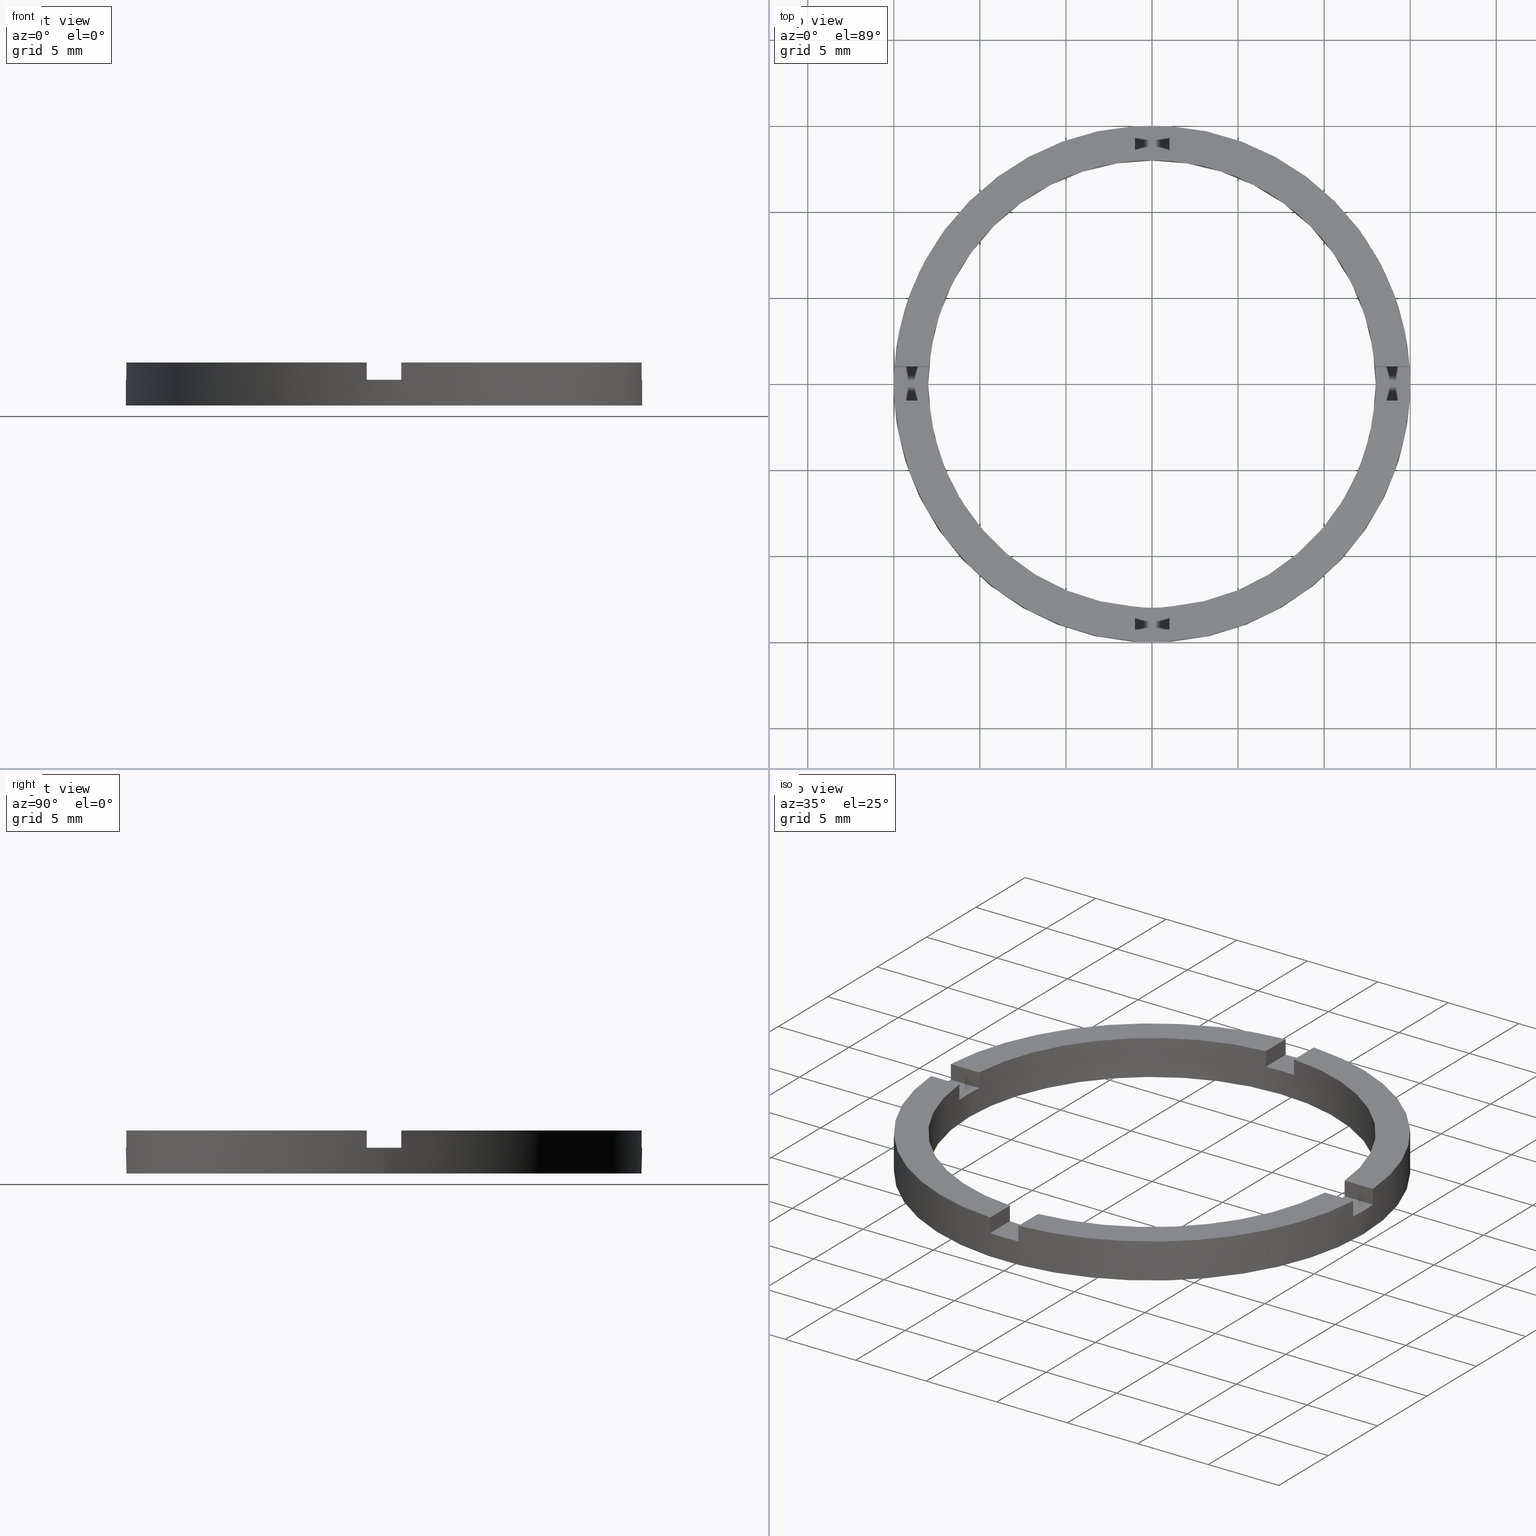
[diagram: canonical four-view strip — front | top / right | iso, engineering-drawing reading convention]
A machine part, canonical four-view strip (front | top / right | iso — engineering-drawing reading convention). The complete STEP part file that produces these views, byte-faithful:
ISO-10303-21;
HEADER;
FILE_DESCRIPTION (( 'STEP AP203' ),
    '1' );
FILE_NAME ('514066.step',
    '2024-12-26T02:34:19',
    ( 'MSI' ),
    ( '' ),
    'SwSTEP 2.0',
    'SolidWorks 2020',
    '' );
FILE_SCHEMA (( 'CONFIG_CONTROL_DESIGN' ));
ENDSEC;

DATA;
#1 = CARTESIAN_POINT ( 'NONE',  ( -12.96148139681571898, -1.000000000000022649, 2.500000000000000000 ) ) ;
#2 = EDGE_CURVE ( 'NONE', #150, #445, #635, .T. ) ;
#3 = EDGE_CURVE ( 'NONE', #166, #416, #114, .T. ) ;
#4 = ORIENTED_EDGE ( 'NONE', *, *, #644, .T. ) ;
#5 = DIRECTION ( 'NONE',  ( 1.000000000000000000, 0.000000000000000000, 0.000000000000000000 ) ) ;
#6 = CARTESIAN_POINT ( 'NONE',  ( 14.96662954709577775, 0.9999999999998406830, 1.500000000000000000 ) ) ;
#7 = VERTEX_POINT ( 'NONE', #190 ) ;
#8 = VERTEX_POINT ( 'NONE', #508 ) ;
#9 = EDGE_CURVE ( 'NONE', #672, #167, #630, .T. ) ;
#10 = DIRECTION ( 'NONE',  ( 1.000000000000000000, 4.336808689942017736E-17, 0.000000000000000000 ) ) ;
#11 = PERSON ( 'δָ��', 'δָ��', 'δָ��', ('δָ��'), ('δָ��'), ('δָ��') ) ;
#12 = DIRECTION ( 'NONE',  ( 0.000000000000000000, 0.000000000000000000, 1.000000000000000000 ) ) ;
#13 = ORIENTED_EDGE ( 'NONE', *, *, #596, .F. ) ;
#14 = DIRECTION ( 'NONE',  ( 1.000000000000000000, 0.000000000000000000, 0.000000000000000000 ) ) ;
#15 = DIRECTION ( 'NONE',  ( 0.000000000000000000, 0.000000000000000000, 1.000000000000000000 ) ) ;
#16 = PLANE ( 'NONE',  #615 ) ;
#17 = DIRECTION ( 'NONE',  ( 0.000000000000000000, 0.000000000000000000, 1.000000000000000000 ) ) ;
#18 = EDGE_CURVE ( 'NONE', #211, #483, #636, .T. ) ;
#19 = PLANE ( 'NONE',  #208 ) ;
#20 = LINE ( 'NONE', #109, #542 ) ;
#21 = CARTESIAN_POINT ( 'NONE',  ( -5.000000000000184741, -1.000000000000021316, 1.500000000000000000 ) ) ;
#22 = VECTOR ( 'NONE', #735, 1000.000000000000000 ) ;
#23 = VECTOR ( 'NONE', #399, 1000.000000000000000 ) ;
#24 = VECTOR ( 'NONE', #173, 1000.000000000000000 ) ;
#25 = AXIS2_PLACEMENT_3D ( 'NONE', #576, #782, #288 ) ;
#26 = CIRCLE ( 'NONE', #33, 13.00000000000000178 ) ;
#27 = DIRECTION ( 'NONE',  ( -1.000000000000000000, 0.000000000000000000, 0.000000000000000000 ) ) ;
#28 = CIRCLE ( 'NONE', #498, 13.00000000000000178 ) ;
#29 = LINE ( 'NONE', #577, #46 ) ;
#30 = FACE_OUTER_BOUND ( 'NONE', #715, .T. ) ;
#31 = EDGE_CURVE ( 'NONE', #673, #7, #614, .T. ) ;
#32 = DIRECTION ( 'NONE',  ( -1.000000000000000000, -4.336808689942017736E-17, -0.000000000000000000 ) ) ;
#33 = AXIS2_PLACEMENT_3D ( 'NONE', #424, #251, #552 ) ;
#34 = CARTESIAN_POINT ( 'NONE',  ( 0.000000000000000000, 0.000000000000000000, 1.500000000000000000 ) ) ;
#35 = VECTOR ( 'NONE', #650, 1000.000000000000000 ) ;
#36 = VECTOR ( 'NONE', #104, 1000.000000000000000 ) ;
#37 = AXIS2_PLACEMENT_3D ( 'NONE', #727, #15, #180 ) ;
#38 = VECTOR ( 'NONE', #10, 1000.000000000000000 ) ;
#39 = CARTESIAN_POINT ( 'NONE',  ( 0.9999999999998366862, -12.96148139681573497, 2.500000000000000000 ) ) ;
#40 = LINE ( 'NONE', #728, #24 ) ;
#41 = VECTOR ( 'NONE', #140, 1000.000000000000000 ) ;
#42 = APPLICATION_CONTEXT ( 'configuration controlled 3d designs of mechanical parts and assemblies' ) ;
#43 = CARTESIAN_POINT ( 'NONE',  ( 0.000000000000000000, 0.000000000000000000, 2.500000000000000000 ) ) ;
#44 = VECTOR ( 'NONE', #591, 1000.000000000000000 ) ;
#45 = FACE_OUTER_BOUND ( 'NONE', #465, .T. ) ;
#46 = VECTOR ( 'NONE', #71, 1000.000000000000000 ) ;
#47 = VECTOR ( 'NONE', #639, 1000.000000000000000 ) ;
#48 = FACE_OUTER_BOUND ( 'NONE', #448, .T. ) ;
#49 = CIRCLE ( 'NONE', #449, 13.00000000000000178 ) ;
#50 = FACE_OUTER_BOUND ( 'NONE', #423, .T. ) ;
#51 = VECTOR ( 'NONE', #499, 1000.000000000000000 ) ;
#52 = CARTESIAN_POINT ( 'NONE',  ( 0.9999999999999751310, 14.96662954709576709, 1.500000000000000000 ) ) ;
#53 = FACE_OUTER_BOUND ( 'NONE', #677, .T. ) ;
#54 = DIRECTION ( 'NONE',  ( 1.000000000000000000, -0.000000000000000000, 0.000000000000000000 ) ) ;
#55 = CARTESIAN_POINT ( 'NONE',  ( -5.000000000000184741, -1.000000000000021316, 1.500000000000000000 ) ) ;
#56 = DIRECTION ( 'NONE',  ( 0.000000000000000000, 0.000000000000000000, 1.000000000000000000 ) ) ;
#57 = DIRECTION ( 'NONE',  ( 0.000000000000000000, 0.000000000000000000, 1.000000000000000000 ) ) ;
#58 = PLANE ( 'NONE',  #562 ) ;
#59 = AXIS2_PLACEMENT_3D ( 'NONE', #522, #537, #592 ) ;
#60 = APPROVAL_ROLE ( '' ) ;
#61 = DIRECTION ( 'NONE',  ( -0.000000000000000000, -0.000000000000000000, -1.000000000000000000 ) ) ;
#62 = DIRECTION ( 'NONE',  ( 1.000000000000000000, 1.734723475976807094E-16, 0.000000000000000000 ) ) ;
#63 = APPROVAL_STATUS ( 'not_yet_approved' ) ;
#64 = CARTESIAN_POINT ( 'NONE',  ( 13.00000000000000178, 1.592040838891559293E-15, 0.000000000000000000 ) ) ;
#65 = CC_DESIGN_PERSON_AND_ORGANIZATION_ASSIGNMENT ( #400, #397, ( #392 ) ) ;
#66 = DIRECTION ( 'NONE',  ( -0.000000000000000000, -0.000000000000000000, -1.000000000000000000 ) ) ;
#67 = EDGE_CURVE ( 'NONE', #141, #718, #364, .T. ) ;
#68 = CARTESIAN_POINT ( 'NONE',  ( -1.000000000000163203, -12.96148139681570832, 2.500000000000000000 ) ) ;
#69 = CARTESIAN_POINT ( 'NONE',  ( 0.9999999999998356870, -5.000000000000179412, 1.500000000000000000 ) ) ;
#70 = CARTESIAN_POINT ( 'NONE',  ( 0.000000000000000000, 0.000000000000000000, 1.500000000000000000 ) ) ;
#71 = DIRECTION ( 'NONE',  ( -0.000000000000000000, -0.000000000000000000, -1.000000000000000000 ) ) ;
#72 = DIRECTION ( 'NONE',  ( 1.000000000000000000, 0.000000000000000000, -0.000000000000000000 ) ) ;
#73 = EDGE_CURVE ( 'NONE', #141, #470, #337, .T. ) ;
#74 = DIRECTION ( 'NONE',  ( 1.000000000000000000, 0.000000000000000000, 0.000000000000000000 ) ) ;
#75 = CARTESIAN_POINT ( 'NONE',  ( 12.96148139681570832, -1.000000000000159428, 2.500000000000000000 ) ) ;
#76 = DIRECTION ( 'NONE',  ( 0.000000000000000000, 0.000000000000000000, 1.000000000000000000 ) ) ;
#77 = EDGE_CURVE ( 'NONE', #141, #672, #107, .T. ) ;
#78 = APPROVAL ( #63, 'δָ��' ) ;
#79 = ADVANCED_FACE ( 'NONE', ( #98 ), #207, .F. ) ;
#80 = CYLINDRICAL_SURFACE ( 'NONE', #386, 13.00000000000000178 ) ;
#81 = CC_DESIGN_SECURITY_CLASSIFICATION ( #125, ( #392 ) ) ;
#82 = VECTOR ( 'NONE', #216, 1000.000000000000000 ) ;
#83 = LINE ( 'NONE', #258, #87 ) ;
#84 = PRODUCT_DEFINITION ( 'δ֪', '', #392, #329 ) ;
#85 = CIRCLE ( 'NONE', #119, 15.00000000000000000 ) ;
#86 = CIRCLE ( 'NONE', #781, 13.00000000000000178 ) ;
#87 = VECTOR ( 'NONE', #315, 1000.000000000000000 ) ;
#88 = ADVANCED_FACE ( 'NONE', ( #609 ), #606, .T. ) ;
#89 = VECTOR ( 'NONE', #734, 1000.000000000000000 ) ;
#90 = PLANE ( 'NONE',  #59 ) ;
#91 = CIRCLE ( 'NONE', #647, 15.00000000000000000 ) ;
#92 = CARTESIAN_POINT ( 'NONE',  ( -1.000000000000164313, -5.000000000000179412, 2.500000000000000000 ) ) ;
#93 = CARTESIAN_POINT ( 'NONE',  ( 0.9999999999998369082, -14.96662954709577775, 2.500000000000000000 ) ) ;
#94 = VECTOR ( 'NONE', #439, 1000.000000000000000 ) ;
#95 = CARTESIAN_POINT ( 'NONE',  ( -12.96148139681571898, -1.000000000000022649, 1.500000000000000000 ) ) ;
#96 = CIRCLE ( 'NONE', #100, 13.00000000000000178 ) ;
#97 = CARTESIAN_POINT ( 'NONE',  ( 0.000000000000000000, 0.000000000000000000, 2.500000000000000000 ) ) ;
#98 = FACE_OUTER_BOUND ( 'NONE', #680, .T. ) ;
#99 = CARTESIAN_POINT ( 'NONE',  ( 12.96148139681573497, 0.9999999999998406830, 2.500000000000000000 ) ) ;
#100 = AXIS2_PLACEMENT_3D ( 'NONE', #572, #771, #627 ) ;
#101 = VECTOR ( 'NONE', #237, 1000.000000000000000 ) ;
#102 = FACE_OUTER_BOUND ( 'NONE', #426, .T. ) ;
#103 = CIRCLE ( 'NONE', #489, 15.00000000000000000 ) ;
#104 = DIRECTION ( 'NONE',  ( 1.000000000000000000, 4.336808689942017736E-17, 0.000000000000000000 ) ) ;
#105 = CIRCLE ( 'NONE', #230, 13.00000000000000178 ) ;
#106 = VECTOR ( 'NONE', #32, 1000.000000000000000 ) ;
#107 = LINE ( 'NONE', #358, #106 ) ;
#108 = ORIENTED_EDGE ( 'NONE', *, *, #2, .F. ) ;
#109 = CARTESIAN_POINT ( 'NONE',  ( -13.00000000000000178, 0.000000000000000000, 2.500000000000000000 ) ) ;
#110 = ORIENTED_EDGE ( 'NONE', *, *, #512, .F. ) ;
#111 = DIRECTION ( 'NONE',  ( 0.000000000000000000, 0.000000000000000000, 1.000000000000000000 ) ) ;
#112 = AXIS2_PLACEMENT_3D ( 'NONE', #120, #314, #511 ) ;
#113 = ORIENTED_EDGE ( 'NONE', *, *, #711, .F. ) ;
#114 = LINE ( 'NONE', #21, #375 ) ;
#115 = ORIENTED_EDGE ( 'NONE', *, *, #550, .F. ) ;
#116 = PERSON_AND_ORGANIZATION_ROLE ( 'design_owner' ) ;
#117 = CC_DESIGN_PERSON_AND_ORGANIZATION_ASSIGNMENT ( #408, #291, ( #84 ) ) ;
#118 = DIRECTION ( 'NONE',  ( -0.000000000000000000, -1.000000000000000000, -0.000000000000000000 ) ) ;
#119 = AXIS2_PLACEMENT_3D ( 'NONE', #70, #284, #319 ) ;
#120 = CARTESIAN_POINT ( 'NONE',  ( 0.000000000000000000, 0.000000000000000000, 2.500000000000000000 ) ) ;
#121 = EDGE_CURVE ( 'NONE', #485, #416, #96, .T. ) ;
#122 = AXIS2_PLACEMENT_3D ( 'NONE', #300, #634, #14 ) ;
#123 = AXIS2_PLACEMENT_3D ( 'NONE', #43, #136, #463 ) ;
#124 = CALENDAR_DATE ( 2024, 26, 12 ) ;
#125 = SECURITY_CLASSIFICATION ( '', '', #344 ) ;
#126 = LOCAL_TIME ( 10, 34, 19.00000000000000000, #131 ) ;
#127 = CALENDAR_DATE ( 2024, 26, 12 ) ;
#128 = DIRECTION ( 'NONE',  ( -0.000000000000000000, -0.000000000000000000, -1.000000000000000000 ) ) ;
#129 = APPROVAL_DATE_TIME ( #664, #455 ) ;
#130 = PERSON_AND_ORGANIZATION ( #11, #689 ) ;
#131 = COORDINATED_UNIVERSAL_TIME_OFFSET ( 8, 0, .AHEAD. ) ;
#132 = AXIS2_PLACEMENT_3D ( 'NONE', #259, #613, #595 ) ;
#133 = APPROVAL_DATE_TIME ( #652, #305 ) ;
#134 = PERSON_AND_ORGANIZATION ( #11, #689 ) ;
#135 = EDGE_CURVE ( 'NONE', #443, #425, #356, .T. ) ;
#136 = DIRECTION ( 'NONE',  ( -0.000000000000000000, -0.000000000000000000, -1.000000000000000000 ) ) ;
#137 = CALENDAR_DATE ( 2024, 26, 12 ) ;
#138 = COORDINATED_UNIVERSAL_TIME_OFFSET ( 8, 0, .AHEAD. ) ;
#139 = ORIENTED_EDGE ( 'NONE', *, *, #651, .F. ) ;
#140 = DIRECTION ( 'NONE',  ( 0.000000000000000000, 1.000000000000000000, 0.000000000000000000 ) ) ;
#141 = VERTEX_POINT ( 'NONE', #265 ) ;
#142 = CARTESIAN_POINT ( 'NONE',  ( 0.9999999999999751310, 4.999999999999999112, 1.500000000000000000 ) ) ;
#143 = ORIENTED_EDGE ( 'NONE', *, *, #560, .T. ) ;
#144 = DATE_AND_TIME ( #127, #658 ) ;
#145 = VERTEX_POINT ( 'NONE', #699 ) ;
#146 = ORIENTED_EDGE ( 'NONE', *, *, #438, .T. ) ;
#147 = APPROVAL_PERSON_ORGANIZATION ( #134, #455, #60 ) ;
#148 = EDGE_LOOP ( 'NONE', ( #468, #146, #742, #453, #682, #201, #733, #729, #467, #738, #181, #456 ) ) ;
#149 = CARTESIAN_POINT ( 'NONE',  ( -5.000000000000184741, 0.9999999999999787947, 2.500000000000000000 ) ) ;
#150 = VERTEX_POINT ( 'NONE', #620 ) ;
#151 = ORIENTED_EDGE ( 'NONE', *, *, #316, .T. ) ;
#152 = DIRECTION ( 'NONE',  ( 1.000000000000000000, 0.000000000000000000, 0.000000000000000000 ) ) ;
#153 = ORIENTED_EDGE ( 'NONE', *, *, #312, .F. ) ;
#154 = AXIS2_PLACEMENT_3D ( 'NONE', #238, #539, #342 ) ;
#155 = ORIENTED_EDGE ( 'NONE', *, *, #267, .F. ) ;
#156 = ORIENTED_EDGE ( 'NONE', *, *, #724, .F. ) ;
#157 = CARTESIAN_POINT ( 'NONE',  ( 15.00000000000000000, 1.836970198721029589E-15, 0.000000000000000000 ) ) ;
#158 = EDGE_LOOP ( 'NONE', ( #632, #177, #406, #178 ) ) ;
#159 = VERTEX_POINT ( 'NONE', #773 ) ;
#160 = CARTESIAN_POINT ( 'NONE',  ( 0.000000000000000000, 0.000000000000000000, 1.500000000000000000 ) ) ;
#161 = ORIENTED_EDGE ( 'NONE', *, *, #3, .T. ) ;
#162 = CARTESIAN_POINT ( 'NONE',  ( 0.000000000000000000, 0.000000000000000000, 2.500000000000000000 ) ) ;
#163 = COORDINATED_UNIVERSAL_TIME_OFFSET ( 8, 0, .AHEAD. ) ;
#164 = ORIENTED_EDGE ( 'NONE', *, *, #560, .F. ) ;
#165 = APPROVAL_STATUS ( 'not_yet_approved' ) ;
#166 = VERTEX_POINT ( 'NONE', #454 ) ;
#167 = VERTEX_POINT ( 'NONE', #516 ) ;
#168 = ORIENTED_EDGE ( 'NONE', *, *, #704, .T. ) ;
#169 = ORIENTED_EDGE ( 'NONE', *, *, #760, .T. ) ;
#170 = PLANE ( 'NONE',  #360 ) ;
#171 = EDGE_LOOP ( 'NONE', ( #752, #695, #155, #420 ) ) ;
#172 = DIRECTION ( 'NONE',  ( 0.000000000000000000, 0.000000000000000000, 1.000000000000000000 ) ) ;
#173 = DIRECTION ( 'NONE',  ( -0.000000000000000000, -0.000000000000000000, -1.000000000000000000 ) ) ;
#174 = EDGE_CURVE ( 'NONE', #443, #483, #370, .T. ) ;
#175 = ORIENTED_EDGE ( 'NONE', *, *, #73, .F. ) ;
#176 = ORIENTED_EDGE ( 'NONE', *, *, #261, .T. ) ;
#177 = ORIENTED_EDGE ( 'NONE', *, *, #292, .T. ) ;
#178 = ORIENTED_EDGE ( 'NONE', *, *, #240, .F. ) ;
#179 = EDGE_LOOP ( 'NONE', ( #676, #254, #520, #164 ) ) ;
#180 = DIRECTION ( 'NONE',  ( 1.000000000000000000, 0.000000000000000000, 0.000000000000000000 ) ) ;
#181 = ORIENTED_EDGE ( 'NONE', *, *, #312, .T. ) ;
#182 = CARTESIAN_POINT ( 'NONE',  ( 0.000000000000000000, 0.000000000000000000, 2.500000000000000000 ) ) ;
#183 = VERTEX_POINT ( 'NONE', #363 ) ;
#184 = ORIENTED_EDGE ( 'NONE', *, *, #668, .F. ) ;
#185 = DIRECTION ( 'NONE',  ( 4.336808689942017736E-17, -1.000000000000000000, 0.000000000000000000 ) ) ;
#186 = CARTESIAN_POINT ( 'NONE',  ( -12.96148139681571898, -1.000000000000022649, 2.500000000000000000 ) ) ;
#187 = ORIENTED_EDGE ( 'NONE', *, *, #411, .F. ) ;
#188 = DIRECTION ( 'NONE',  ( 0.000000000000000000, -0.000000000000000000, 1.000000000000000000 ) ) ;
#189 = EDGE_CURVE ( 'NONE', #697, #422, #621, .T. ) ;
#190 = CARTESIAN_POINT ( 'NONE',  ( -15.00000000000000000, 0.000000000000000000, 0.000000000000000000 ) ) ;
#191 = DIRECTION ( 'NONE',  ( 1.000000000000000000, 0.000000000000000000, 0.000000000000000000 ) ) ;
#192 = VERTEX_POINT ( 'NONE', #753 ) ;
#193 =( GEOMETRIC_REPRESENTATION_CONTEXT ( 3 ) GLOBAL_UNCERTAINTY_ASSIGNED_CONTEXT ( ( #436 ) ) GLOBAL_UNIT_ASSIGNED_CONTEXT ( ( #306, #747, #362 ) ) REPRESENTATION_CONTEXT ( 'NONE', 'WORKASPACE' ) );
#194 = DIRECTION ( 'NONE',  ( -1.734723475976807094E-16, 1.000000000000000000, 0.000000000000000000 ) ) ;
#195 = ORIENTED_EDGE ( 'NONE', *, *, #67, .F. ) ;
#196 = ORIENTED_EDGE ( 'NONE', *, *, #515, .T. ) ;
#197 = ORIENTED_EDGE ( 'NONE', *, *, #31, .T. ) ;
#198 = CARTESIAN_POINT ( 'NONE',  ( 0.000000000000000000, 0.000000000000000000, 0.000000000000000000 ) ) ;
#199 = ORIENTED_EDGE ( 'NONE', *, *, #777, .F. ) ;
#200 = DIRECTION ( 'NONE',  ( 1.000000000000000000, 0.000000000000000000, 0.000000000000000000 ) ) ;
#201 = ORIENTED_EDGE ( 'NONE', *, *, #744, .F. ) ;
#202 = EDGE_CURVE ( 'NONE', #722, #257, #83, .T. ) ;
#203 = ORIENTED_EDGE ( 'NONE', *, *, #570, .F. ) ;
#204 = AXIS2_PLACEMENT_3D ( 'NONE', #385, #12, #152 ) ;
#205 = ORIENTED_EDGE ( 'NONE', *, *, #701, .T. ) ;
#206 = ORIENTED_EDGE ( 'NONE', *, *, #313, .F. ) ;
#207 = PLANE ( 'NONE',  #132 ) ;
#208 = AXIS2_PLACEMENT_3D ( 'NONE', #198, #666, #604 ) ;
#209 = VERTEX_POINT ( 'NONE', #450 ) ;
#210 = ORIENTED_EDGE ( 'NONE', *, *, #550, .T. ) ;
#211 = VERTEX_POINT ( 'NONE', #599 ) ;
#212 = EDGE_LOOP ( 'NONE', ( #486, #756, #685, #482, #491, #690, #758, #184, #229, #227, #490, #168 ) ) ;
#213 = ADVANCED_FACE ( 'NONE', ( #102, #350 ), #19, .F. ) ;
#214 = ORIENTED_EDGE ( 'NONE', *, *, #724, .T. ) ;
#215 = ORIENTED_EDGE ( 'NONE', *, *, #589, .F. ) ;
#216 = DIRECTION ( 'NONE',  ( 1.301042606982605321E-16, -1.000000000000000000, 0.000000000000000000 ) ) ;
#217 = ORIENTED_EDGE ( 'NONE', *, *, #324, .T. ) ;
#218 = ORIENTED_EDGE ( 'NONE', *, *, #390, .T. ) ;
#219 = ORIENTED_EDGE ( 'NONE', *, *, #605, .F. ) ;
#220 = ORIENTED_EDGE ( 'NONE', *, *, #31, .F. ) ;
#221 = ORIENTED_EDGE ( 'NONE', *, *, #564, .F. ) ;
#222 = CARTESIAN_POINT ( 'NONE',  ( -12.96148139681572253, 0.9999999999999774625, 1.500000000000000000 ) ) ;
#223 = ORIENTED_EDGE ( 'NONE', *, *, #359, .F. ) ;
#224 = ORIENTED_EDGE ( 'NONE', *, *, #596, .T. ) ;
#225 = ORIENTED_EDGE ( 'NONE', *, *, #605, .T. ) ;
#226 = DIRECTION ( 'NONE',  ( 1.000000000000000000, 0.000000000000000000, 0.000000000000000000 ) ) ;
#227 = ORIENTED_EDGE ( 'NONE', *, *, #390, .F. ) ;
#228 = ADVANCED_FACE ( 'NONE', ( #351 ), #373, .T. ) ;
#229 = ORIENTED_EDGE ( 'NONE', *, *, #564, .T. ) ;
#230 = AXIS2_PLACEMENT_3D ( 'NONE', #34, #610, #687 ) ;
#231 = CARTESIAN_POINT ( 'NONE',  ( 4.999999999999993783, -1.000000000000159872, 2.500000000000000000 ) ) ;
#232 = ORIENTED_EDGE ( 'NONE', *, *, #245, .F. ) ;
#233 = PLANE ( 'NONE',  #778 ) ;
#234 = AXIS2_PLACEMENT_3D ( 'NONE', #346, #382, #286 ) ;
#235 = ADVANCED_FACE ( 'NONE', ( #625 ), #80, .F. ) ;
#236 = CARTESIAN_POINT ( 'NONE',  ( -1.000000000000024869, 14.96662954709576354, 2.500000000000000000 ) ) ;
#237 = DIRECTION ( 'NONE',  ( 1.301042606982605321E-16, -1.000000000000000000, 0.000000000000000000 ) ) ;
#238 = CARTESIAN_POINT ( 'NONE',  ( 0.9999999999998356870, -5.000000000000179412, 1.500000000000000000 ) ) ;
#239 = CARTESIAN_POINT ( 'NONE',  ( 14.96662954709575466, -1.000000000000159428, 1.500000000000000000 ) ) ;
#240 = EDGE_CURVE ( 'NONE', #425, #183, #611, .T. ) ;
#241 = APPROVAL_ROLE ( '' ) ;
#242 = EDGE_CURVE ( 'NONE', #480, #494, #357, .T. ) ;
#243 = CC_DESIGN_DATE_AND_TIME_ASSIGNMENT ( #383, #298, ( #84 ) ) ;
#244 = PLANE ( 'NONE',  #122 ) ;
#245 = EDGE_CURVE ( 'NONE', #722, #8, #339, .T. ) ;
#246 = CARTESIAN_POINT ( 'NONE',  ( 4.999999999999993783, -1.000000000000159872, 1.500000000000000000 ) ) ;
#247 = DIRECTION ( 'NONE',  ( -1.301042606982605321E-16, 1.000000000000000000, -0.000000000000000000 ) ) ;
#248 = CARTESIAN_POINT ( 'NONE',  ( 0.000000000000000000, 0.000000000000000000, 2.500000000000000000 ) ) ;
#249 = DIRECTION ( 'NONE',  ( 0.000000000000000000, 0.000000000000000000, 1.000000000000000000 ) ) ;
#250 = APPLICATION_PROTOCOL_DEFINITION ( 'international standard', 'config_control_design', 1994, #505 ) ;
#251 = DIRECTION ( 'NONE',  ( 0.000000000000000000, 0.000000000000000000, 1.000000000000000000 ) ) ;
#252 = CARTESIAN_POINT ( 'NONE',  ( 0.000000000000000000, 0.000000000000000000, 2.500000000000000000 ) ) ;
#253 = VERTEX_POINT ( 'NONE', #186 ) ;
#254 = ORIENTED_EDGE ( 'NONE', *, *, #447, .T. ) ;
#255 = CARTESIAN_POINT ( 'NONE',  ( 0.000000000000000000, 0.000000000000000000, 1.500000000000000000 ) ) ;
#256 = VERTEX_POINT ( 'NONE', #75 ) ;
#257 = VERTEX_POINT ( 'NONE', #767 ) ;
#258 = CARTESIAN_POINT ( 'NONE',  ( -12.96148139681572253, 0.9999999999999774625, 2.500000000000000000 ) ) ;
#259 = CARTESIAN_POINT ( 'NONE',  ( -1.000000000000024869, 4.999999999999999112, 1.500000000000000000 ) ) ;
#260 = DIRECTION ( 'NONE',  ( -0.000000000000000000, 0.000000000000000000, 1.000000000000000000 ) ) ;
#261 = EDGE_CURVE ( 'NONE', #722, #485, #105, .T. ) ;
#262 = AXIS2_PLACEMENT_3D ( 'NONE', #332, #111, #391 ) ;
#263 = CARTESIAN_POINT ( 'NONE',  ( -13.00000000000000178, 0.000000000000000000, 0.000000000000000000 ) ) ;
#264 = LINE ( 'NONE', #646, #44 ) ;
#265 = CARTESIAN_POINT ( 'NONE',  ( 14.96662954709577775, 0.9999999999998406830, 2.500000000000000000 ) ) ;
#266 = FACE_OUTER_BOUND ( 'NONE', #746, .T. ) ;
#267 = EDGE_CURVE ( 'NONE', #494, #483, #334, .T. ) ;
#268 = LINE ( 'NONE', #149, #47 ) ;
#269 = EDGE_CURVE ( 'NONE', #672, #414, #607, .T. ) ;
#270 = AXIS2_PLACEMENT_3D ( 'NONE', #365, #188, #663 ) ;
#271 = FACE_OUTER_BOUND ( 'NONE', #471, .T. ) ;
#272 = CARTESIAN_POINT ( 'NONE',  ( -15.00000000000000000, 0.000000000000000000, 1.500000000000000000 ) ) ;
#273 = DIRECTION ( 'NONE',  ( 1.000000000000000000, 0.000000000000000000, 0.000000000000000000 ) ) ;
#274 = LINE ( 'NONE', #231, #36 ) ;
#275 = EDGE_CURVE ( 'NONE', #697, #684, #369, .T. ) ;
#276 = VECTOR ( 'NONE', #648, 1000.000000000000000 ) ;
#277 = PLANE ( 'NONE',  #25 ) ;
#278 = DIRECTION ( 'NONE',  ( 1.000000000000000000, 0.000000000000000000, 0.000000000000000000 ) ) ;
#279 = DIRECTION ( 'NONE',  ( -0.000000000000000000, -0.000000000000000000, -1.000000000000000000 ) ) ;
#280 = CARTESIAN_POINT ( 'NONE',  ( 12.96148139681573497, 0.9999999999998406830, 2.500000000000000000 ) ) ;
#281 = FACE_OUTER_BOUND ( 'NONE', #212, .T. ) ;
#282 = CARTESIAN_POINT ( 'NONE',  ( -14.96662954709576354, -1.000000000000023093, 2.500000000000000000 ) ) ;
#283 = CIRCLE ( 'NONE', #270, 13.00000000000000178 ) ;
#284 = DIRECTION ( 'NONE',  ( 0.000000000000000000, 0.000000000000000000, 1.000000000000000000 ) ) ;
#285 = LINE ( 'NONE', #575, #540 ) ;
#286 = DIRECTION ( 'NONE',  ( 1.000000000000000000, 0.000000000000000000, 0.000000000000000000 ) ) ;
#287 = FACE_OUTER_BOUND ( 'NONE', #708, .T. ) ;
#288 = DIRECTION ( 'NONE',  ( 1.301042606982605321E-16, -1.000000000000000000, 0.000000000000000000 ) ) ;
#289 = PLANE ( 'NONE',  #154 ) ;
#290 = VECTOR ( 'NONE', #61, 1000.000000000000000 ) ;
#291 = PERSON_AND_ORGANIZATION_ROLE ( 'creator' ) ;
#292 = EDGE_CURVE ( 'NONE', #443, #731, #603, .T. ) ;
#293 = CARTESIAN_POINT ( 'NONE',  ( 0.000000000000000000, 0.000000000000000000, 2.500000000000000000 ) ) ;
#294 = CIRCLE ( 'NONE', #691, 15.00000000000000000 ) ;
#295 = LINE ( 'NONE', #484, #23 ) ;
#296 = CARTESIAN_POINT ( 'NONE',  ( 12.96148139681570832, -1.000000000000159428, 2.500000000000000000 ) ) ;
#297 = VECTOR ( 'NONE', #118, 1000.000000000000000 ) ;
#298 = DATE_TIME_ROLE ( 'creation_date' ) ;
#299 = CYLINDRICAL_SURFACE ( 'NONE', #585, 13.00000000000000178 ) ;
#300 = CARTESIAN_POINT ( 'NONE',  ( 0.000000000000000000, 0.000000000000000000, 1.500000000000000000 ) ) ;
#301 = FACE_OUTER_BOUND ( 'NONE', #739, .T. ) ;
#302 = CARTESIAN_POINT ( 'NONE',  ( -1.000000000000024869, 14.96662954709576354, 2.500000000000000000 ) ) ;
#303 = LINE ( 'NONE', #514, #567 ) ;
#304 = FACE_OUTER_BOUND ( 'NONE', #743, .T. ) ;
#305 = APPROVAL ( #380, 'δָ��' ) ;
#306 =( LENGTH_UNIT ( ) NAMED_UNIT ( * ) SI_UNIT ( .MILLI., .METRE. ) );
#307 = DIRECTION ( 'NONE',  ( 0.000000000000000000, 0.000000000000000000, 1.000000000000000000 ) ) ;
#308 = AXIS2_PLACEMENT_3D ( 'NONE', #55, #544, #62 ) ;
#309 = MECHANICAL_CONTEXT ( 'NONE', #505, 'mechanical' ) ;
#310 = CARTESIAN_POINT ( 'NONE',  ( 0.000000000000000000, 0.000000000000000000, 2.500000000000000000 ) ) ;
#311 = DIRECTION ( 'NONE',  ( -1.000000000000000000, -1.734723475976807094E-16, 0.000000000000000000 ) ) ;
#312 = EDGE_CURVE ( 'NONE', #211, #256, #602, .T. ) ;
#313 = EDGE_CURVE ( 'NONE', #480, #211, #600, .T. ) ;
#314 = DIRECTION ( 'NONE',  ( 0.000000000000000000, 0.000000000000000000, 1.000000000000000000 ) ) ;
#315 = DIRECTION ( 'NONE',  ( 0.000000000000000000, 0.000000000000000000, 1.000000000000000000 ) ) ;
#316 = EDGE_CURVE ( 'NONE', #470, #414, #597, .T. ) ;
#317 = DIRECTION ( 'NONE',  ( 0.000000000000000000, 0.000000000000000000, 1.000000000000000000 ) ) ;
#318 = DIRECTION ( 'NONE',  ( -1.000000000000000000, 0.000000000000000000, 0.000000000000000000 ) ) ;
#319 = DIRECTION ( 'NONE',  ( 1.000000000000000000, 0.000000000000000000, 0.000000000000000000 ) ) ;
#320 = AXIS2_PLACEMENT_3D ( 'NONE', #142, #54, #720 ) ;
#321 = APPLICATION_PROTOCOL_DEFINITION ( 'international standard', 'config_control_design', 1994, #42 ) ;
#322 = DIRECTION ( 'NONE',  ( 0.000000000000000000, -0.000000000000000000, 1.000000000000000000 ) ) ;
#323 = EDGE_CURVE ( 'NONE', #145, #253, #601, .T. ) ;
#324 = EDGE_CURVE ( 'NONE', #709, #159, #91, .T. ) ;
#325 = DIRECTION ( 'NONE',  ( 1.000000000000000000, 0.000000000000000000, -0.000000000000000000 ) ) ;
#326 = AXIS2_PLACEMENT_3D ( 'NONE', #248, #307, #355 ) ;
#327 = ADVANCED_FACE ( 'NONE', ( #352 ), #640, .F. ) ;
#328 = DIRECTION ( 'NONE',  ( 0.000000000000000000, 0.000000000000000000, 1.000000000000000000 ) ) ;
#329 = DESIGN_CONTEXT ( 'detailed design', #42, 'design' ) ;
#330 = AXIS2_PLACEMENT_3D ( 'NONE', #714, #57, #331 ) ;
#331 = DIRECTION ( 'NONE',  ( 1.000000000000000000, 0.000000000000000000, 0.000000000000000000 ) ) ;
#332 = CARTESIAN_POINT ( 'NONE',  ( 0.000000000000000000, 0.000000000000000000, 2.500000000000000000 ) ) ;
#333 = CARTESIAN_POINT ( 'NONE',  ( 4.999999999999993783, -1.000000000000159872, 1.500000000000000000 ) ) ;
#334 = LINE ( 'NONE', #69, #361 ) ;
#335 = CARTESIAN_POINT ( 'NONE',  ( 0.000000000000000000, 0.000000000000000000, 1.500000000000000000 ) ) ;
#336 = DIRECTION ( 'NONE',  ( 0.000000000000000000, 0.000000000000000000, 1.000000000000000000 ) ) ;
#337 = LINE ( 'NONE', #367, #598 ) ;
#338 = APPROVAL_ROLE ( '' ) ;
#339 = LINE ( 'NONE', #559, #608 ) ;
#340 = DIRECTION ( 'NONE',  ( -0.000000000000000000, -0.000000000000000000, -1.000000000000000000 ) ) ;
#341 = VECTOR ( 'NONE', #593, 1000.000000000000000 ) ;
#342 = DIRECTION ( 'NONE',  ( -1.301042606982605321E-16, 1.000000000000000000, 0.000000000000000000 ) ) ;
#343 = LINE ( 'NONE', #92, #101 ) ;
#344 = SECURITY_CLASSIFICATION_LEVEL ( 'unclassified' ) ;
#345 = VECTOR ( 'NONE', #279, 1000.000000000000000 ) ;
#346 = CARTESIAN_POINT ( 'NONE',  ( 0.000000000000000000, 0.000000000000000000, 0.000000000000000000 ) ) ;
#347 = VECTOR ( 'NONE', #523, 1000.000000000000000 ) ;
#348 = CARTESIAN_POINT ( 'NONE',  ( -5.000000000000184741, -1.000000000000021316, 2.500000000000000000 ) ) ;
#349 = PLANE ( 'NONE',  #501 ) ;
#350 = FACE_BOUND ( 'NONE', #670, .T. ) ;
#351 = FACE_OUTER_BOUND ( 'NONE', #712, .T. ) ;
#352 = FACE_OUTER_BOUND ( 'NONE', #179, .T. ) ;
#353 = CARTESIAN_POINT ( 'NONE',  ( 0.000000000000000000, 0.000000000000000000, 0.000000000000000000 ) ) ;
#354 = VECTOR ( 'NONE', #506, 1000.000000000000000 ) ;
#355 = DIRECTION ( 'NONE',  ( 1.000000000000000000, 0.000000000000000000, -0.000000000000000000 ) ) ;
#356 = LINE ( 'NONE', #569, #82 ) ;
#357 = LINE ( 'NONE', #556, #94 ) ;
#358 = CARTESIAN_POINT ( 'NONE',  ( 4.999999999999993783, 0.9999999999998402389, 2.500000000000000000 ) ) ;
#359 = EDGE_CURVE ( 'NONE', #731, #183, #343, .T. ) ;
#360 = AXIS2_PLACEMENT_3D ( 'NONE', #293, #581, #645 ) ;
#361 = VECTOR ( 'NONE', #247, 1000.000000000000000 ) ;
#362 =( NAMED_UNIT ( * ) SI_UNIT ( $, .STERADIAN. ) SOLID_ANGLE_UNIT ( ) );
#363 = CARTESIAN_POINT ( 'NONE',  ( -1.000000000000162981, -14.96662954709575466, 2.500000000000000000 ) ) ;
#364 = CIRCLE ( 'NONE', #469, 15.00000000000000000 ) ;
#365 = CARTESIAN_POINT ( 'NONE',  ( 0.000000000000000000, 0.000000000000000000, 1.500000000000000000 ) ) ;
#366 = FACE_OUTER_BOUND ( 'NONE', #158, .T. ) ;
#367 = CARTESIAN_POINT ( 'NONE',  ( 14.96662954709577775, 0.9999999999998406830, 2.500000000000000000 ) ) ;
#368 = FACE_OUTER_BOUND ( 'NONE', #148, .T. ) ;
#369 = CIRCLE ( 'NONE', #330, 15.00000000000000000 ) ;
#370 = CIRCLE ( 'NONE', #526, 13.00000000000000178 ) ;
#371 = ORIENTED_EDGE ( 'NONE', *, *, #189, .T. ) ;
#372 = DIRECTION ( 'NONE',  ( 1.000000000000000000, 1.734723475976807094E-16, -0.000000000000000000 ) ) ;
#373 = PLANE ( 'NONE',  #659 ) ;
#374 = ORIENTED_EDGE ( 'NONE', *, *, #622, .F. ) ;
#375 = VECTOR ( 'NONE', #372, 1000.000000000000000 ) ;
#376 = CC_DESIGN_APPROVAL ( #455, ( #125 ) ) ;
#377 = CARTESIAN_POINT ( 'NONE',  ( 0.000000000000000000, 0.000000000000000000, 1.500000000000000000 ) ) ;
#378 = CARTESIAN_POINT ( 'NONE',  ( 0.000000000000000000, 0.000000000000000000, 0.000000000000000000 ) ) ;
#379 = ADVANCED_FACE ( 'NONE', ( #366 ), #277, .F. ) ;
#380 = APPROVAL_STATUS ( 'not_yet_approved' ) ;
#381 = LOCAL_TIME ( 10, 34, 19.00000000000000000, #138 ) ;
#382 = DIRECTION ( 'NONE',  ( 0.000000000000000000, 0.000000000000000000, 1.000000000000000000 ) ) ;
#383 = DATE_AND_TIME ( #667, #387 ) ;
#384 = DATE_AND_TIME ( #137, #126 ) ;
#385 = CARTESIAN_POINT ( 'NONE',  ( 0.000000000000000000, 0.000000000000000000, 2.500000000000000000 ) ) ;
#386 = AXIS2_PLACEMENT_3D ( 'NONE', #310, #513, #27 ) ;
#387 = LOCAL_TIME ( 10, 34, 19.00000000000000000, #665 ) ;
#388 = CARTESIAN_POINT ( 'NONE',  ( 13.00000000000000178, 1.592040838891559293E-15, 1.500000000000000000 ) ) ;
#389 = CARTESIAN_POINT ( 'NONE',  ( 0.000000000000000000, 0.000000000000000000, 0.000000000000000000 ) ) ;
#390 = EDGE_CURVE ( 'NONE', #409, #166, #103, .T. ) ;
#391 = DIRECTION ( 'NONE',  ( 1.000000000000000000, 0.000000000000000000, 0.000000000000000000 ) ) ;
#392 = PRODUCT_DEFINITION_FORMATION_WITH_SPECIFIED_SOURCE ( '�κ�', '', #403, .NOT_KNOWN. ) ;
#393 = CARTESIAN_POINT ( 'NONE',  ( 13.00000000000000178, 1.592040838891559293E-15, 2.500000000000000000 ) ) ;
#394 = CARTESIAN_POINT ( 'NONE',  ( 0.9999999999999751310, 4.999999999999999112, 2.500000000000000000 ) ) ;
#395 = DIRECTION ( 'NONE',  ( 1.000000000000000000, 0.000000000000000000, -0.000000000000000000 ) ) ;
#396 = PRODUCT_RELATED_PRODUCT_CATEGORY ( 'detail', '', ( #403 ) ) ;
#397 = PERSON_AND_ORGANIZATION_ROLE ( 'creator' ) ;
#398 = LOCAL_TIME ( 10, 34, 19.00000000000000000, #163 ) ;
#399 = DIRECTION ( 'NONE',  ( 0.000000000000000000, 0.000000000000000000, 1.000000000000000000 ) ) ;
#400 = PERSON_AND_ORGANIZATION ( #11, #689 ) ;
#401 = EDGE_CURVE ( 'NONE', #159, #470, #85, .T. ) ;
#402 = DIRECTION ( 'NONE',  ( -0.000000000000000000, -0.000000000000000000, -1.000000000000000000 ) ) ;
#403 = PRODUCT ( '514066', '514066', '', ( #309 ) ) ;
#404 = AXIS2_PLACEMENT_3D ( 'NONE', #353, #421, #430 ) ;
#405 = VERTEX_POINT ( 'NONE', #518 ) ;
#406 = ORIENTED_EDGE ( 'NONE', *, *, #359, .T. ) ;
#407 = ORIENTED_EDGE ( 'NONE', *, *, #589, .T. ) ;
#408 = PERSON_AND_ORGANIZATION ( #11, #689 ) ;
#409 = VERTEX_POINT ( 'NONE', #272 ) ;
#410 = ORIENTED_EDGE ( 'NONE', *, *, #401, .F. ) ;
#411 = EDGE_CURVE ( 'NONE', #8, #409, #623, .T. ) ;
#412 = DIRECTION ( 'NONE',  ( -1.000000000000000000, 0.000000000000000000, 0.000000000000000000 ) ) ;
#413 = ORIENTED_EDGE ( 'NONE', *, *, #460, .T. ) ;
#414 = VERTEX_POINT ( 'NONE', #631 ) ;
#415 = SHAPE_DEFINITION_REPRESENTATION ( #580, #716 ) ;
#416 = VERTEX_POINT ( 'NONE', #95 ) ;
#417 = DIRECTION ( 'NONE',  ( -4.336808689942017736E-17, 1.000000000000000000, 0.000000000000000000 ) ) ;
#418 = ORIENTED_EDGE ( 'NONE', *, *, #316, .F. ) ;
#419 = ORIENTED_EDGE ( 'NONE', *, *, #772, .F. ) ;
#420 = ORIENTED_EDGE ( 'NONE', *, *, #242, .F. ) ;
#421 = DIRECTION ( 'NONE',  ( 0.000000000000000000, 0.000000000000000000, 1.000000000000000000 ) ) ;
#422 = VERTEX_POINT ( 'NONE', #707 ) ;
#423 = EDGE_LOOP ( 'NONE', ( #156, #153, #206, #196 ) ) ;
#424 = CARTESIAN_POINT ( 'NONE',  ( 0.000000000000000000, 0.000000000000000000, 0.000000000000000000 ) ) ;
#425 = VERTEX_POINT ( 'NONE', #571 ) ;
#426 = EDGE_LOOP ( 'NONE', ( #759, #220 ) ) ;
#427 = PERSON_AND_ORGANIZATION ( #11, #689 ) ;
#428 = ORIENTED_EDGE ( 'NONE', *, *, #534, .F. ) ;
#429 = EDGE_LOOP ( 'NONE', ( #113, #413, #214, #428 ) ) ;
#430 = DIRECTION ( 'NONE',  ( 1.000000000000000000, 0.000000000000000000, 0.000000000000000000 ) ) ;
#431 = VERTEX_POINT ( 'NONE', #263 ) ;
#432 = CARTESIAN_POINT ( 'NONE',  ( -1.000000000000162981, -14.96662954709575466, 2.500000000000000000 ) ) ;
#433 = ORIENTED_EDGE ( 'NONE', *, *, #323, .F. ) ;
#434 = CARTESIAN_POINT ( 'NONE',  ( -1.000000000000024869, 4.999999999999999112, 1.500000000000000000 ) ) ;
#435 = ORIENTED_EDGE ( 'NONE', *, *, #447, .F. ) ;
#436 = UNCERTAINTY_MEASURE_WITH_UNIT (LENGTH_MEASURE( 1.000000000000000082E-05 ), #306, 'distance_accuracy_value', 'NONE');
#437 = ORIENTED_EDGE ( 'NONE', *, *, #711, .T. ) ;
#438 = EDGE_CURVE ( 'NONE', #445, #750, #612, .T. ) ;
#439 = DIRECTION ( 'NONE',  ( -0.000000000000000000, -0.000000000000000000, -1.000000000000000000 ) ) ;
#440 = VERTEX_POINT ( 'NONE', #618 ) ;
#441 = ORIENTED_EDGE ( 'NONE', *, *, #77, .T. ) ;
#442 = EDGE_CURVE ( 'NONE', #253, #731, #86, .T. ) ;
#443 = VERTEX_POINT ( 'NONE', #525 ) ;
#444 = CLOSED_SHELL ( 'NONE', ( #446, #88, #638, #582, #457, #768, #213, #643, #235, #476, #629, #529, #464, #379, #776, #509, #783, #228, #79, #327, #774 ) ) ;
#445 = VERTEX_POINT ( 'NONE', #388 ) ;
#446 = ADVANCED_FACE ( 'NONE', ( #368 ), #299, .F. ) ;
#447 = EDGE_CURVE ( 'NONE', #440, #167, #303, .T. ) ;
#448 = EDGE_LOOP ( 'NONE', ( #232, #755, #751, #419 ) ) ;
#449 = AXIS2_PLACEMENT_3D ( 'NONE', #641, #657, #278 ) ;
#450 = CARTESIAN_POINT ( 'NONE',  ( -1.000000000000024869, 12.96148139681571898, 1.500000000000000000 ) ) ;
#451 = AXIS2_PLACEMENT_3D ( 'NONE', #573, #76, #226 ) ;
#452 = ORIENTED_EDGE ( 'NONE', *, *, #67, .T. ) ;
#453 = ORIENTED_EDGE ( 'NONE', *, *, #770, .F. ) ;
#454 = CARTESIAN_POINT ( 'NONE',  ( -14.96662954709576354, -1.000000000000023093, 1.500000000000000000 ) ) ;
#455 = APPROVAL ( #165, 'δָ��' ) ;
#456 = ORIENTED_EDGE ( 'NONE', *, *, #460, .F. ) ;
#457 = ADVANCED_FACE ( 'NONE', ( #50 ), #349, .T. ) ;
#458 = ORIENTED_EDGE ( 'NONE', *, *, #772, .T. ) ;
#459 = ORIENTED_EDGE ( 'NONE', *, *, #9, .F. ) ;
#460 = EDGE_CURVE ( 'NONE', #150, #256, #563, .T. ) ;
#461 = ORIENTED_EDGE ( 'NONE', *, *, #275, .T. ) ;
#462 = CC_DESIGN_PERSON_AND_ORGANIZATION_ASSIGNMENT ( #427, #116, ( #403 ) ) ;
#463 = DIRECTION ( 'NONE',  ( -1.000000000000000000, 0.000000000000000000, 0.000000000000000000 ) ) ;
#464 = ADVANCED_FACE ( 'NONE', ( #568 ), #289, .F. ) ;
#465 = EDGE_LOOP ( 'NONE', ( #679, #519, #13, #4 ) ) ;
#466 = ORIENTED_EDGE ( 'NONE', *, *, #579, .F. ) ;
#467 = ORIENTED_EDGE ( 'NONE', *, *, #174, .T. ) ;
#468 = ORIENTED_EDGE ( 'NONE', *, *, #2, .T. ) ;
#469 = AXIS2_PLACEMENT_3D ( 'NONE', #252, #317, #763 ) ;
#470 = VERTEX_POINT ( 'NONE', #6 ) ;
#471 = EDGE_LOOP ( 'NONE', ( #723, #461, #199, #466 ) ) ;
#472 = CARTESIAN_POINT ( 'NONE',  ( 0.9999999999999751310, 14.96662954709576709, 2.500000000000000000 ) ) ;
#473 = PLANE ( 'NONE',  #308 ) ;
#474 = ORIENTED_EDGE ( 'NONE', *, *, #411, .T. ) ;
#475 = DIRECTION ( 'NONE',  ( 0.000000000000000000, 1.000000000000000000, 0.000000000000000000 ) ) ;
#476 = ADVANCED_FACE ( 'NONE', ( #53 ), #473, .F. ) ;
#477 = DIRECTION ( 'NONE',  ( 1.000000000000000000, 0.000000000000000000, 0.000000000000000000 ) ) ;
#478 = ORIENTED_EDGE ( 'NONE', *, *, #261, .F. ) ;
#479 = DIRECTION ( 'NONE',  ( 0.000000000000000000, 0.000000000000000000, 1.000000000000000000 ) ) ;
#480 = VERTEX_POINT ( 'NONE', #93 ) ;
#481 = DATE_TIME_ROLE ( 'classification_date' ) ;
#482 = ORIENTED_EDGE ( 'NONE', *, *, #515, .F. ) ;
#483 = VERTEX_POINT ( 'NONE', #532 ) ;
#484 = CARTESIAN_POINT ( 'NONE',  ( -14.96662954709576709, 0.9999999999999770184, 2.500000000000000000 ) ) ;
#485 = VERTEX_POINT ( 'NONE', #528 ) ;
#486 = ORIENTED_EDGE ( 'NONE', *, *, #701, .F. ) ;
#487 = ORIENTED_EDGE ( 'NONE', *, *, #737, .F. ) ;
#488 = ORIENTED_EDGE ( 'NONE', *, *, #653, .T. ) ;
#489 = AXIS2_PLACEMENT_3D ( 'NONE', #335, #748, #191 ) ;
#490 = ORIENTED_EDGE ( 'NONE', *, *, #570, .T. ) ;
#491 = ORIENTED_EDGE ( 'NONE', *, *, #242, .T. ) ;
#492 = ORIENTED_EDGE ( 'NONE', *, *, #323, .T. ) ;
#493 = CARTESIAN_POINT ( 'NONE',  ( 0.000000000000000000, 0.000000000000000000, 1.500000000000000000 ) ) ;
#494 = VERTEX_POINT ( 'NONE', #584 ) ;
#495 = ORIENTED_EDGE ( 'NONE', *, *, #442, .F. ) ;
#496 = ORIENTED_EDGE ( 'NONE', *, *, #744, .T. ) ;
#497 = CARTESIAN_POINT ( 'NONE',  ( 4.999999999999993783, 0.9999999999998402389, 1.500000000000000000 ) ) ;
#498 = AXIS2_PLACEMENT_3D ( 'NONE', #389, #732, #719 ) ;
#499 = DIRECTION ( 'NONE',  ( 0.000000000000000000, 0.000000000000000000, 1.000000000000000000 ) ) ;
#500 = ORIENTED_EDGE ( 'NONE', *, *, #202, .F. ) ;
#501 = AXIS2_PLACEMENT_3D ( 'NONE', #182, #479, #325 ) ;
#502 = DIRECTION ( 'NONE',  ( 1.000000000000000000, 0.000000000000000000, 0.000000000000000000 ) ) ;
#503 = CC_DESIGN_DATE_AND_TIME_ASSIGNMENT ( #144, #481, ( #125 ) ) ;
#504 = CARTESIAN_POINT ( 'NONE',  ( -5.000000000000184741, 0.9999999999999787947, 1.500000000000000000 ) ) ;
#505 = APPLICATION_CONTEXT ( 'configuration controlled 3d designs of mechanical parts and assemblies' ) ;
#506 = DIRECTION ( 'NONE',  ( 0.000000000000000000, 0.000000000000000000, 1.000000000000000000 ) ) ;
#507 = PLANE ( 'NONE',  #654 ) ;
#508 = CARTESIAN_POINT ( 'NONE',  ( -14.96662954709576709, 0.9999999999999770184, 1.500000000000000000 ) ) ;
#509 = ADVANCED_FACE ( 'NONE', ( #301 ), #16, .F. ) ;
#510 = DIRECTION ( 'NONE',  ( -0.000000000000000000, -1.000000000000000000, -0.000000000000000000 ) ) ;
#511 = DIRECTION ( 'NONE',  ( 1.000000000000000000, 0.000000000000000000, 0.000000000000000000 ) ) ;
#512 = EDGE_CURVE ( 'NONE', #445, #414, #49, .T. ) ;
#513 = DIRECTION ( 'NONE',  ( -0.000000000000000000, -0.000000000000000000, -1.000000000000000000 ) ) ;
#514 = CARTESIAN_POINT ( 'NONE',  ( 0.9999999999999751310, 12.96148139681572431, 2.500000000000000000 ) ) ;
#515 = EDGE_CURVE ( 'NONE', #480, #405, #565, .T. ) ;
#516 = CARTESIAN_POINT ( 'NONE',  ( 0.9999999999999751310, 12.96148139681572431, 2.500000000000000000 ) ) ;
#517 = AXIS2_PLACEMENT_3D ( 'NONE', #246, #185, #547 ) ;
#518 = CARTESIAN_POINT ( 'NONE',  ( 14.96662954709575466, -1.000000000000159428, 2.500000000000000000 ) ) ;
#519 = ORIENTED_EDGE ( 'NONE', *, *, #622, .T. ) ;
#520 = ORIENTED_EDGE ( 'NONE', *, *, #737, .T. ) ;
#521 = CC_DESIGN_PERSON_AND_ORGANIZATION_ASSIGNMENT ( #655, #588, ( #392 ) ) ;
#522 = CARTESIAN_POINT ( 'NONE',  ( 0.000000000000000000, 0.000000000000000000, 1.500000000000000000 ) ) ;
#523 = DIRECTION ( 'NONE',  ( -1.000000000000000000, -4.336808689942017736E-17, -0.000000000000000000 ) ) ;
#524 = CARTESIAN_POINT ( 'NONE',  ( 0.000000000000000000, 0.000000000000000000, 1.500000000000000000 ) ) ;
#525 = CARTESIAN_POINT ( 'NONE',  ( -1.000000000000163203, -12.96148139681570832, 1.500000000000000000 ) ) ;
#526 = AXIS2_PLACEMENT_3D ( 'NONE', #377, #260, #502 ) ;
#527 = CARTESIAN_POINT ( 'NONE',  ( 15.00000000000000000, 1.836970198721029589E-15, 2.500000000000000000 ) ) ;
#528 = CARTESIAN_POINT ( 'NONE',  ( -13.00000000000000178, 0.000000000000000000, 1.500000000000000000 ) ) ;
#529 = ADVANCED_FACE ( 'NONE', ( #304 ), #233, .T. ) ;
#530 = DIRECTION ( 'NONE',  ( 1.000000000000000000, 0.000000000000000000, 0.000000000000000000 ) ) ;
#531 = LINE ( 'NONE', #721, #22 ) ;
#532 = CARTESIAN_POINT ( 'NONE',  ( 0.9999999999998366862, -12.96148139681573497, 1.500000000000000000 ) ) ;
#533 = LINE ( 'NONE', #434, #297 ) ;
#534 = EDGE_CURVE ( 'NONE', #709, #405, #264, .T. ) ;
#535 = CIRCLE ( 'NONE', #234, 15.00000000000000000 ) ;
#536 = LINE ( 'NONE', #302, #35 ) ;
#537 = DIRECTION ( 'NONE',  ( 0.000000000000000000, -0.000000000000000000, 1.000000000000000000 ) ) ;
#538 = CIRCLE ( 'NONE', #262, 13.00000000000000178 ) ;
#539 = DIRECTION ( 'NONE',  ( 1.000000000000000000, 1.301042606982605321E-16, 0.000000000000000000 ) ) ;
#540 = VECTOR ( 'NONE', #475, 1000.000000000000000 ) ;
#541 = LINE ( 'NONE', #1, #276 ) ;
#542 = VECTOR ( 'NONE', #340, 1000.000000000000000 ) ;
#543 = CARTESIAN_POINT ( 'NONE',  ( 0.000000000000000000, 0.000000000000000000, 1.500000000000000000 ) ) ;
#544 = DIRECTION ( 'NONE',  ( 1.734723475976807094E-16, -1.000000000000000000, 0.000000000000000000 ) ) ;
#545 = LINE ( 'NONE', #527, #290 ) ;
#546 = LINE ( 'NONE', #333, #38 ) ;
#547 = DIRECTION ( 'NONE',  ( 1.000000000000000000, 4.336808689942017736E-17, 0.000000000000000000 ) ) ;
#548 = CARTESIAN_POINT ( 'NONE',  ( -1.000000000000024869, 4.999999999999999112, 2.500000000000000000 ) ) ;
#549 = CIRCLE ( 'NONE', #757, 15.00000000000000000 ) ;
#550 = EDGE_CURVE ( 'NONE', #697, #192, #536, .T. ) ;
#551 = CC_DESIGN_APPROVAL ( #78, ( #392 ) ) ;
#552 = DIRECTION ( 'NONE',  ( 1.000000000000000000, 0.000000000000000000, 0.000000000000000000 ) ) ;
#553 = LINE ( 'NONE', #394, #41 ) ;
#554 = FACE_OUTER_BOUND ( 'NONE', #429, .T. ) ;
#555 = CYLINDRICAL_SURFACE ( 'NONE', #745, 15.00000000000000000 ) ;
#556 = CARTESIAN_POINT ( 'NONE',  ( 0.9999999999998369082, -14.96662954709577775, 2.500000000000000000 ) ) ;
#557 = CIRCLE ( 'NONE', #706, 15.00000000000000000 ) ;
#558 = VECTOR ( 'NONE', #66, 1000.000000000000000 ) ;
#559 = CARTESIAN_POINT ( 'NONE',  ( -5.000000000000184741, 0.9999999999999787947, 1.500000000000000000 ) ) ;
#560 = EDGE_CURVE ( 'NONE', #705, #718, #531, .T. ) ;
#561 = LINE ( 'NONE', #282, #558 ) ;
#562 = AXIS2_PLACEMENT_3D ( 'NONE', #162, #336, #395 ) ;
#563 = LINE ( 'NONE', #296, #51 ) ;
#564 = EDGE_CURVE ( 'NONE', #145, #166, #561, .T. ) ;
#565 = CIRCLE ( 'NONE', #204, 15.00000000000000000 ) ;
#566 = DIRECTION ( 'NONE',  ( 0.000000000000000000, 0.000000000000000000, 1.000000000000000000 ) ) ;
#567 = VECTOR ( 'NONE', #624, 1000.000000000000000 ) ;
#568 = FACE_OUTER_BOUND ( 'NONE', #171, .T. ) ;
#569 = CARTESIAN_POINT ( 'NONE',  ( -1.000000000000164313, -5.000000000000179412, 1.500000000000000000 ) ) ;
#570 = EDGE_CURVE ( 'NONE', #409, #7, #29, .T. ) ;
#571 = CARTESIAN_POINT ( 'NONE',  ( -1.000000000000162981, -14.96662954709575466, 1.500000000000000000 ) ) ;
#572 = CARTESIAN_POINT ( 'NONE',  ( 0.000000000000000000, 0.000000000000000000, 1.500000000000000000 ) ) ;
#573 = CARTESIAN_POINT ( 'NONE',  ( 0.000000000000000000, 0.000000000000000000, 1.500000000000000000 ) ) ;
#574 = AXIS2_PLACEMENT_3D ( 'NONE', #378, #249, #200 ) ;
#575 = CARTESIAN_POINT ( 'NONE',  ( 0.9999999999999751310, 4.999999999999999112, 1.500000000000000000 ) ) ;
#576 = CARTESIAN_POINT ( 'NONE',  ( -1.000000000000164313, -5.000000000000179412, 1.500000000000000000 ) ) ;
#577 = CARTESIAN_POINT ( 'NONE',  ( -15.00000000000000000, 0.000000000000000000, 2.500000000000000000 ) ) ;
#578 = CARTESIAN_POINT ( 'NONE',  ( 0.000000000000000000, 0.000000000000000000, 2.500000000000000000 ) ) ;
#579 = EDGE_CURVE ( 'NONE', #422, #257, #538, .T. ) ;
#580 = PRODUCT_DEFINITION_SHAPE ( 'NONE', 'NONE',  #84 ) ;
#581 = DIRECTION ( 'NONE',  ( 0.000000000000000000, 0.000000000000000000, 1.000000000000000000 ) ) ;
#582 = ADVANCED_FACE ( 'NONE', ( #266 ), #58, .T. ) ;
#583 = DIRECTION ( 'NONE',  ( -1.301042606982605321E-16, 1.000000000000000000, -0.000000000000000000 ) ) ;
#584 = CARTESIAN_POINT ( 'NONE',  ( 0.9999999999998369082, -14.96662954709577775, 1.500000000000000000 ) ) ;
#585 = AXIS2_PLACEMENT_3D ( 'NONE', #578, #717, #318 ) ;
#586 = CARTESIAN_POINT ( 'NONE',  ( 0.9999999999998356870, -5.000000000000179412, 2.500000000000000000 ) ) ;
#587 = DIRECTION ( 'NONE',  ( 0.000000000000000000, 0.000000000000000000, 1.000000000000000000 ) ) ;
#588 = PERSON_AND_ORGANIZATION_ROLE ( 'design_supplier' ) ;
#589 = EDGE_CURVE ( 'NONE', #422, #209, #40, .T. ) ;
#590 = CC_DESIGN_APPROVAL ( #305, ( #84 ) ) ;
#591 = DIRECTION ( 'NONE',  ( 0.000000000000000000, 0.000000000000000000, 1.000000000000000000 ) ) ;
#592 = DIRECTION ( 'NONE',  ( 1.000000000000000000, 0.000000000000000000, -0.000000000000000000 ) ) ;
#593 = DIRECTION ( 'NONE',  ( 1.000000000000000000, 1.734723475976807094E-16, -0.000000000000000000 ) ) ;
#594 = CARTESIAN_POINT ( 'NONE',  ( 4.999999999999993783, 0.9999999999998402389, 1.500000000000000000 ) ) ;
#595 = DIRECTION ( 'NONE',  ( 0.000000000000000000, 0.000000000000000000, 1.000000000000000000 ) ) ;
#596 = EDGE_CURVE ( 'NONE', #440, #209, #283, .T. ) ;
#597 = LINE ( 'NONE', #497, #347 ) ;
#598 = VECTOR ( 'NONE', #674, 1000.000000000000000 ) ;
#599 = CARTESIAN_POINT ( 'NONE',  ( 0.9999999999998366862, -12.96148139681573497, 2.500000000000000000 ) ) ;
#600 = LINE ( 'NONE', #586, #628 ) ;
#601 = LINE ( 'NONE', #348, #341 ) ;
#602 = CIRCLE ( 'NONE', #37, 13.00000000000000178 ) ;
#603 = LINE ( 'NONE', #649, #89 ) ;
#604 = DIRECTION ( 'NONE',  ( 1.000000000000000000, 0.000000000000000000, -0.000000000000000000 ) ) ;
#605 = EDGE_CURVE ( 'NONE', #750, #431, #26, .T. ) ;
#606 = CYLINDRICAL_SURFACE ( 'NONE', #123, 15.00000000000000000 ) ;
#607 = LINE ( 'NONE', #99, #619 ) ;
#608 = VECTOR ( 'NONE', #617, 1000.000000000000000 ) ;
#609 = FACE_OUTER_BOUND ( 'NONE', #693, .T. ) ;
#610 = DIRECTION ( 'NONE',  ( 0.000000000000000000, 0.000000000000000000, 1.000000000000000000 ) ) ;
#611 = LINE ( 'NONE', #432, #354 ) ;
#612 = LINE ( 'NONE', #393, #345 ) ;
#613 = DIRECTION ( 'NONE',  ( -1.000000000000000000, 0.000000000000000000, 0.000000000000000000 ) ) ;
#614 = CIRCLE ( 'NONE', #574, 15.00000000000000000 ) ;
#615 = AXIS2_PLACEMENT_3D ( 'NONE', #594, #417, #637 ) ;
#616 = VECTOR ( 'NONE', #510, 1000.000000000000000 ) ;
#617 = DIRECTION ( 'NONE',  ( -1.000000000000000000, -1.734723475976807094E-16, 0.000000000000000000 ) ) ;
#618 = CARTESIAN_POINT ( 'NONE',  ( 0.9999999999999751310, 12.96148139681572431, 1.500000000000000000 ) ) ;
#619 = VECTOR ( 'NONE', #402, 1000.000000000000000 ) ;
#620 = CARTESIAN_POINT ( 'NONE',  ( 12.96148139681570832, -1.000000000000159428, 1.500000000000000000 ) ) ;
#621 = LINE ( 'NONE', #548, #616 ) ;
#622 = EDGE_CURVE ( 'NONE', #192, #209, #533, .T. ) ;
#623 = CIRCLE ( 'NONE', #451, 15.00000000000000000 ) ;
#624 = DIRECTION ( 'NONE',  ( 0.000000000000000000, 0.000000000000000000, 1.000000000000000000 ) ) ;
#625 = FACE_OUTER_BOUND ( 'NONE', #754, .T. ) ;
#626 = VECTOR ( 'NONE', #128, 1000.000000000000000 ) ;
#627 = DIRECTION ( 'NONE',  ( 1.000000000000000000, 0.000000000000000000, 0.000000000000000000 ) ) ;
#628 = VECTOR ( 'NONE', #583, 1000.000000000000000 ) ;
#629 = ADVANCED_FACE ( 'NONE', ( #48 ), #507, .F. ) ;
#630 = CIRCLE ( 'NONE', #112, 13.00000000000000178 ) ;
#631 = CARTESIAN_POINT ( 'NONE',  ( 12.96148139681573497, 0.9999999999998406830, 1.500000000000000000 ) ) ;
#632 = ORIENTED_EDGE ( 'NONE', *, *, #135, .F. ) ;
#633 = ORIENTED_EDGE ( 'NONE', *, *, #174, .F. ) ;
#634 = DIRECTION ( 'NONE',  ( -0.000000000000000000, 0.000000000000000000, 1.000000000000000000 ) ) ;
#635 = CIRCLE ( 'NONE', #775, 13.00000000000000178 ) ;
#636 = LINE ( 'NONE', #39, #626 ) ;
#637 = DIRECTION ( 'NONE',  ( -1.000000000000000000, -4.336808689942017736E-17, 0.000000000000000000 ) ) ;
#638 = ADVANCED_FACE ( 'NONE', ( #271 ), #749, .T. ) ;
#639 = DIRECTION ( 'NONE',  ( -1.000000000000000000, -1.734723475976807094E-16, 0.000000000000000000 ) ) ;
#640 = PLANE ( 'NONE',  #320 ) ;
#641 = CARTESIAN_POINT ( 'NONE',  ( 0.000000000000000000, 0.000000000000000000, 1.500000000000000000 ) ) ;
#642 = CARTESIAN_POINT ( 'NONE',  ( 0.000000000000000000, 0.000000000000000000, 2.500000000000000000 ) ) ;
#643 = ADVANCED_FACE ( 'NONE', ( #281 ), #555, .T. ) ;
#644 = EDGE_CURVE ( 'NONE', #440, #705, #285, .T. ) ;
#645 = DIRECTION ( 'NONE',  ( 1.000000000000000000, 0.000000000000000000, -0.000000000000000000 ) ) ;
#646 = CARTESIAN_POINT ( 'NONE',  ( 14.96662954709575466, -1.000000000000159428, 2.500000000000000000 ) ) ;
#647 = AXIS2_PLACEMENT_3D ( 'NONE', #160, #172, #5 ) ;
#648 = DIRECTION ( 'NONE',  ( -0.000000000000000000, -0.000000000000000000, -1.000000000000000000 ) ) ;
#649 = CARTESIAN_POINT ( 'NONE',  ( -1.000000000000163203, -12.96148139681570832, 2.500000000000000000 ) ) ;
#650 = DIRECTION ( 'NONE',  ( -0.000000000000000000, -0.000000000000000000, -1.000000000000000000 ) ) ;
#651 = EDGE_CURVE ( 'NONE', #705, #192, #549, .T. ) ;
#652 = DATE_AND_TIME ( #124, #398 ) ;
#653 = EDGE_CURVE ( 'NONE', #431, #750, #28, .T. ) ;
#654 = AXIS2_PLACEMENT_3D ( 'NONE', #504, #194, #311 ) ;
#655 = PERSON_AND_ORGANIZATION ( #11, #689 ) ;
#656 = CALENDAR_DATE ( 2024, 26, 12 ) ;
#657 = DIRECTION ( 'NONE',  ( 0.000000000000000000, 0.000000000000000000, 1.000000000000000000 ) ) ;
#658 = LOCAL_TIME ( 10, 34, 19.00000000000000000, #678 ) ;
#659 = AXIS2_PLACEMENT_3D ( 'NONE', #255, #566, #72 ) ;
#660 = PERSON_AND_ORGANIZATION ( #11, #689 ) ;
#661 = ORIENTED_EDGE ( 'NONE', *, *, #3, .F. ) ;
#662 = PLANE ( 'NONE',  #517 ) ;
#663 = DIRECTION ( 'NONE',  ( 1.000000000000000000, 0.000000000000000000, 0.000000000000000000 ) ) ;
#664 = DATE_AND_TIME ( #656, #381 ) ;
#665 = COORDINATED_UNIVERSAL_TIME_OFFSET ( 8, 0, .AHEAD. ) ;
#666 = DIRECTION ( 'NONE',  ( 0.000000000000000000, 0.000000000000000000, 1.000000000000000000 ) ) ;
#667 = CALENDAR_DATE ( 2024, 26, 12 ) ;
#668 = EDGE_CURVE ( 'NONE', #145, #183, #294, .T. ) ;
#669 = ORIENTED_EDGE ( 'NONE', *, *, #73, .T. ) ;
#670 = EDGE_LOOP ( 'NONE', ( #488, #225 ) ) ;
#671 = ORIENTED_EDGE ( 'NONE', *, *, #401, .T. ) ;
#672 = VERTEX_POINT ( 'NONE', #280 ) ;
#673 = VERTEX_POINT ( 'NONE', #157 ) ;
#674 = DIRECTION ( 'NONE',  ( -0.000000000000000000, -0.000000000000000000, -1.000000000000000000 ) ) ;
#675 = APPROVAL_PERSON_ORGANIZATION ( #660, #78, #338 ) ;
#676 = ORIENTED_EDGE ( 'NONE', *, *, #644, .F. ) ;
#677 = EDGE_LOOP ( 'NONE', ( #492, #496, #661, #221 ) ) ;
#678 = COORDINATED_UNIVERSAL_TIME_OFFSET ( 8, 0, .AHEAD. ) ;
#679 = ORIENTED_EDGE ( 'NONE', *, *, #651, .T. ) ;
#680 = EDGE_LOOP ( 'NONE', ( #371, #407, #374, #115 ) ) ;
#681 = APPROVAL_DATE_TIME ( #384, #78 ) ;
#682 = ORIENTED_EDGE ( 'NONE', *, *, #121, .T. ) ;
#683 = APPROVAL_PERSON_ORGANIZATION ( #694, #305, #241 ) ;
#684 = VERTEX_POINT ( 'NONE', #725 ) ;
#685 = ORIENTED_EDGE ( 'NONE', *, *, #534, .T. ) ;
#686 = ORIENTED_EDGE ( 'NONE', *, *, #245, .T. ) ;
#687 = DIRECTION ( 'NONE',  ( 1.000000000000000000, 0.000000000000000000, 0.000000000000000000 ) ) ;
#688 = ORIENTED_EDGE ( 'NONE', *, *, #135, .T. ) ;
#689 = ORGANIZATION ( 'δָ��', 'δָ��', '' ) ;
#690 = ORIENTED_EDGE ( 'NONE', *, *, #760, .F. ) ;
#691 = AXIS2_PLACEMENT_3D ( 'NONE', #740, #56, #273 ) ;
#692 = DIRECTION ( 'NONE',  ( 1.000000000000000000, 0.000000000000000000, 0.000000000000000000 ) ) ;
#693 = EDGE_LOOP ( 'NONE', ( #410, #205, #197, #203, #187, #458, #736, #210, #139, #143, #195, #669 ) ) ;
#694 = PERSON_AND_ORGANIZATION ( #11, #689 ) ;
#695 = ORIENTED_EDGE ( 'NONE', *, *, #18, .T. ) ;
#696 = ORIENTED_EDGE ( 'NONE', *, *, #579, .T. ) ;
#697 = VERTEX_POINT ( 'NONE', #236 ) ;
#698 = ORIENTED_EDGE ( 'NONE', *, *, #267, .T. ) ;
#699 = CARTESIAN_POINT ( 'NONE',  ( -14.96662954709576354, -1.000000000000023093, 2.500000000000000000 ) ) ;
#700 = ORIENTED_EDGE ( 'NONE', *, *, #438, .F. ) ;
#701 = EDGE_CURVE ( 'NONE', #159, #673, #545, .T. ) ;
#702 = ORIENTED_EDGE ( 'NONE', *, *, #121, .F. ) ;
#703 = ORIENTED_EDGE ( 'NONE', *, *, #770, .T. ) ;
#704 = EDGE_CURVE ( 'NONE', #7, #673, #535, .T. ) ;
#705 = VERTEX_POINT ( 'NONE', #52 ) ;
#706 = AXIS2_PLACEMENT_3D ( 'NONE', #543, #710, #530 ) ;
#707 = CARTESIAN_POINT ( 'NONE',  ( -1.000000000000024869, 12.96148139681571898, 2.500000000000000000 ) ) ;
#708 = EDGE_LOOP ( 'NONE', ( #223, #495, #433, #765 ) ) ;
#709 = VERTEX_POINT ( 'NONE', #239 ) ;
#710 = DIRECTION ( 'NONE',  ( -0.000000000000000000, 0.000000000000000000, 1.000000000000000000 ) ) ;
#711 = EDGE_CURVE ( 'NONE', #150, #709, #546, .T. ) ;
#712 = EDGE_LOOP ( 'NONE', ( #217, #671, #151, #110, #108, #437 ) ) ;
#713 = ORIENTED_EDGE ( 'NONE', *, *, #269, .F. ) ;
#714 = CARTESIAN_POINT ( 'NONE',  ( 0.000000000000000000, 0.000000000000000000, 2.500000000000000000 ) ) ;
#715 = EDGE_LOOP ( 'NONE', ( #169, #698, #633, #688 ) ) ;
#716 = ADVANCED_BREP_SHAPE_REPRESENTATION ( '514066', ( #779, #404 ), #193 ) ;
#717 = DIRECTION ( 'NONE',  ( -0.000000000000000000, -0.000000000000000000, -1.000000000000000000 ) ) ;
#718 = VERTEX_POINT ( 'NONE', #472 ) ;
#719 = DIRECTION ( 'NONE',  ( 1.000000000000000000, 0.000000000000000000, 0.000000000000000000 ) ) ;
#720 = DIRECTION ( 'NONE',  ( 0.000000000000000000, 0.000000000000000000, -1.000000000000000000 ) ) ;
#721 = CARTESIAN_POINT ( 'NONE',  ( 0.9999999999999751310, 14.96662954709576709, 2.500000000000000000 ) ) ;
#722 = VERTEX_POINT ( 'NONE', #222 ) ;
#723 = ORIENTED_EDGE ( 'NONE', *, *, #189, .F. ) ;
#724 = EDGE_CURVE ( 'NONE', #256, #405, #274, .T. ) ;
#725 = CARTESIAN_POINT ( 'NONE',  ( -14.96662954709576709, 0.9999999999999770184, 2.500000000000000000 ) ) ;
#726 = ORIENTED_EDGE ( 'NONE', *, *, #77, .F. ) ;
#727 = CARTESIAN_POINT ( 'NONE',  ( 0.000000000000000000, 0.000000000000000000, 2.500000000000000000 ) ) ;
#728 = CARTESIAN_POINT ( 'NONE',  ( -1.000000000000024869, 12.96148139681571898, 2.500000000000000000 ) ) ;
#729 = ORIENTED_EDGE ( 'NONE', *, *, #292, .F. ) ;
#730 = PERSON_AND_ORGANIZATION_ROLE ( 'classification_officer' ) ;
#731 = VERTEX_POINT ( 'NONE', #68 ) ;
#732 = DIRECTION ( 'NONE',  ( 0.000000000000000000, 0.000000000000000000, 1.000000000000000000 ) ) ;
#733 = ORIENTED_EDGE ( 'NONE', *, *, #442, .T. ) ;
#734 = DIRECTION ( 'NONE',  ( 0.000000000000000000, 0.000000000000000000, 1.000000000000000000 ) ) ;
#735 = DIRECTION ( 'NONE',  ( 0.000000000000000000, 0.000000000000000000, 1.000000000000000000 ) ) ;
#736 = ORIENTED_EDGE ( 'NONE', *, *, #275, .F. ) ;
#737 = EDGE_CURVE ( 'NONE', #167, #718, #553, .T. ) ;
#738 = ORIENTED_EDGE ( 'NONE', *, *, #18, .F. ) ;
#739 = EDGE_LOOP ( 'NONE', ( #441, #766, #418, #175 ) ) ;
#740 = CARTESIAN_POINT ( 'NONE',  ( 0.000000000000000000, 0.000000000000000000, 2.500000000000000000 ) ) ;
#741 = DIRECTION ( 'NONE',  ( 1.000000000000000000, 0.000000000000000000, -0.000000000000000000 ) ) ;
#742 = ORIENTED_EDGE ( 'NONE', *, *, #653, .F. ) ;
#743 = EDGE_LOOP ( 'NONE', ( #474, #218, #161, #702, #478, #686 ) ) ;
#744 = EDGE_CURVE ( 'NONE', #253, #416, #541, .T. ) ;
#745 = AXIS2_PLACEMENT_3D ( 'NONE', #97, #780, #412 ) ;
#746 = EDGE_LOOP ( 'NONE', ( #487, #459, #726, #452 ) ) ;
#747 =( NAMED_UNIT ( * ) PLANE_ANGLE_UNIT ( ) SI_UNIT ( $, .RADIAN. ) );
#748 = DIRECTION ( 'NONE',  ( 0.000000000000000000, 0.000000000000000000, 1.000000000000000000 ) ) ;
#749 = PLANE ( 'NONE',  #326 ) ;
#750 = VERTEX_POINT ( 'NONE', #64 ) ;
#751 = ORIENTED_EDGE ( 'NONE', *, *, #777, .T. ) ;
#752 = ORIENTED_EDGE ( 'NONE', *, *, #313, .T. ) ;
#753 = CARTESIAN_POINT ( 'NONE',  ( -1.000000000000024869, 14.96662954709576354, 1.500000000000000000 ) ) ;
#754 = EDGE_LOOP ( 'NONE', ( #700, #762, #713, #761, #435, #224, #215, #696, #500, #176, #703, #219 ) ) ;
#755 = ORIENTED_EDGE ( 'NONE', *, *, #202, .T. ) ;
#756 = ORIENTED_EDGE ( 'NONE', *, *, #324, .F. ) ;
#757 = AXIS2_PLACEMENT_3D ( 'NONE', #493, #322, #477 ) ;
#758 = ORIENTED_EDGE ( 'NONE', *, *, #240, .T. ) ;
#759 = ORIENTED_EDGE ( 'NONE', *, *, #704, .F. ) ;
#760 = EDGE_CURVE ( 'NONE', #425, #494, #557, .T. ) ;
#761 = ORIENTED_EDGE ( 'NONE', *, *, #9, .T. ) ;
#762 = ORIENTED_EDGE ( 'NONE', *, *, #512, .T. ) ;
#763 = DIRECTION ( 'NONE',  ( 1.000000000000000000, 0.000000000000000000, 0.000000000000000000 ) ) ;
#764 = CC_DESIGN_PERSON_AND_ORGANIZATION_ASSIGNMENT ( #130, #730, ( #125 ) ) ;
#765 = ORIENTED_EDGE ( 'NONE', *, *, #668, .T. ) ;
#766 = ORIENTED_EDGE ( 'NONE', *, *, #269, .T. ) ;
#767 = CARTESIAN_POINT ( 'NONE',  ( -12.96148139681572253, 0.9999999999999774625, 2.500000000000000000 ) ) ;
#768 = ADVANCED_FACE ( 'NONE', ( #287 ), #170, .T. ) ;
#769 = CARTESIAN_POINT ( 'NONE',  ( 0.000000000000000000, 0.000000000000000000, 1.500000000000000000 ) ) ;
#770 = EDGE_CURVE ( 'NONE', #485, #431, #20, .T. ) ;
#771 = DIRECTION ( 'NONE',  ( 0.000000000000000000, 0.000000000000000000, 1.000000000000000000 ) ) ;
#772 = EDGE_CURVE ( 'NONE', #8, #684, #295, .T. ) ;
#773 = CARTESIAN_POINT ( 'NONE',  ( 15.00000000000000000, 1.836970198721029589E-15, 1.500000000000000000 ) ) ;
#774 = ADVANCED_FACE ( 'NONE', ( #45 ), #90, .T. ) ;
#775 = AXIS2_PLACEMENT_3D ( 'NONE', #769, #17, #74 ) ;
#776 = ADVANCED_FACE ( 'NONE', ( #30 ), #244, .T. ) ;
#777 = EDGE_CURVE ( 'NONE', #257, #684, #268, .T. ) ;
#778 = AXIS2_PLACEMENT_3D ( 'NONE', #524, #587, #741 ) ;
#779 = MANIFOLD_SOLID_BREP ( '�г�-����1', #444 ) ;
#780 = DIRECTION ( 'NONE',  ( -0.000000000000000000, -0.000000000000000000, -1.000000000000000000 ) ) ;
#781 = AXIS2_PLACEMENT_3D ( 'NONE', #642, #328, #692 ) ;
#782 = DIRECTION ( 'NONE',  ( -1.000000000000000000, -1.301042606982605321E-16, 0.000000000000000000 ) ) ;
#783 = ADVANCED_FACE ( 'NONE', ( #554 ), #662, .F. ) ;
ENDSEC;
END-ISO-10303-21;
